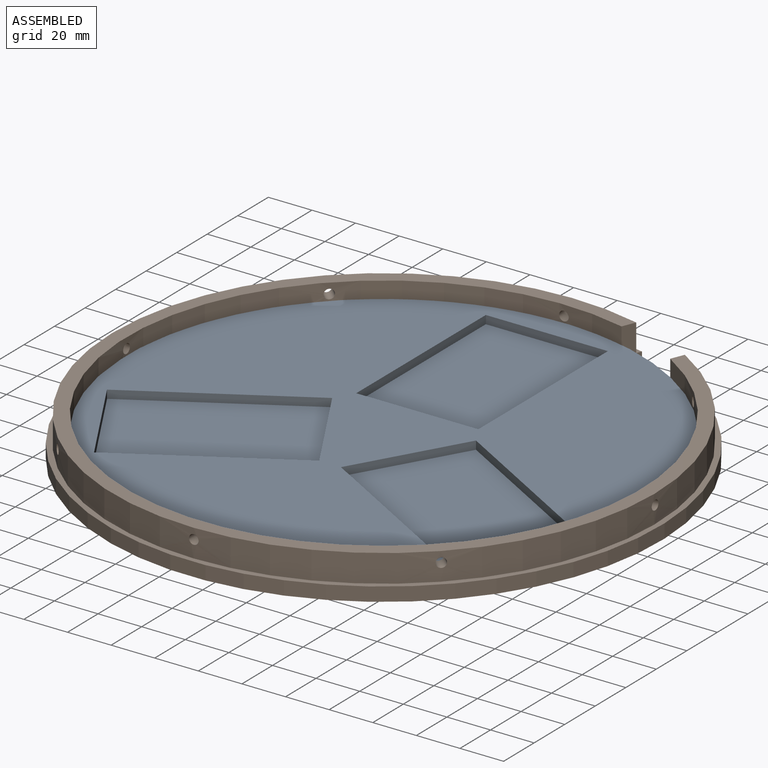
[diagram: assembled view]
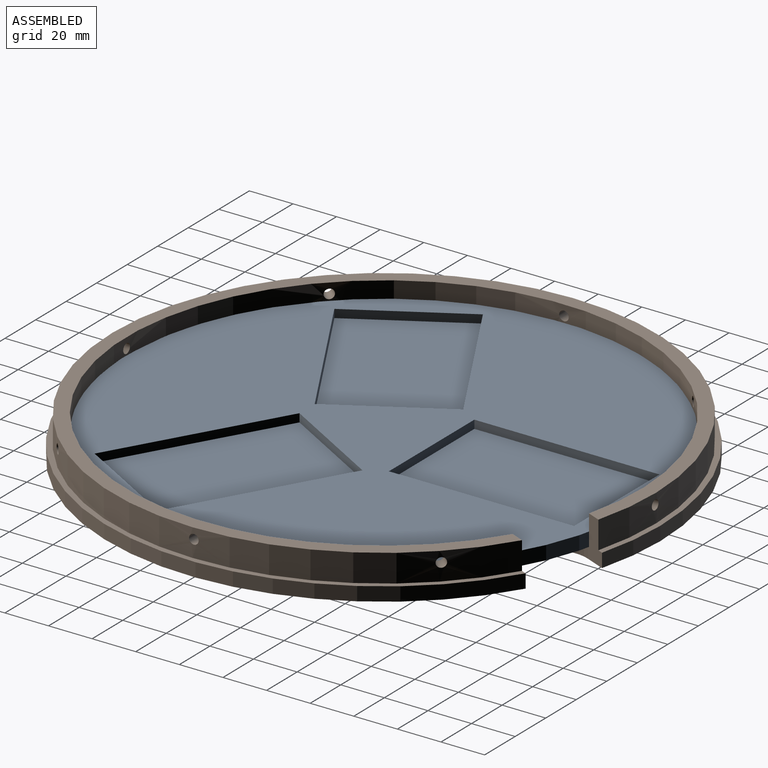
[diagram: assembled view, second angle]
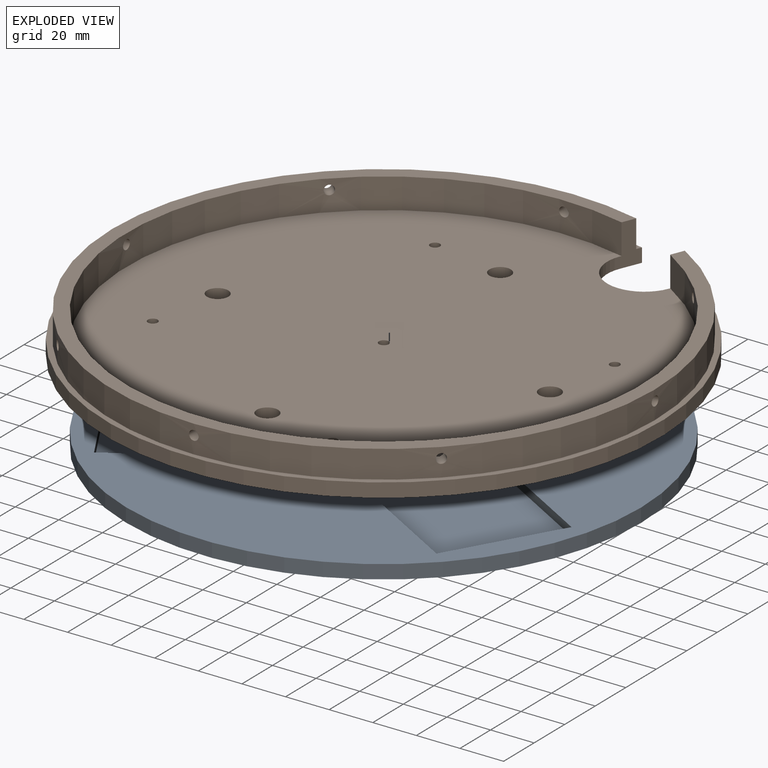
[diagram: exploded view]
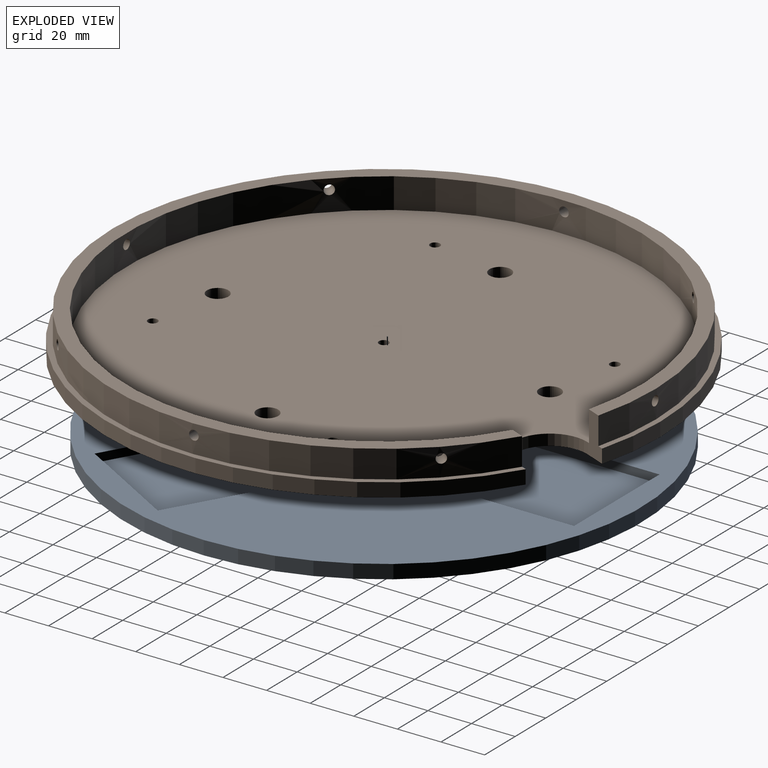
[diagram: exploded view, second angle]
ASSEMBLY  parts=2 mates=2
PART A: 18 faces, bbox 236x236x6.4 mm
  f0: plane 235.97x235.97mm, normal (0,0,1), area 29463.9mm2, adj f1,f3,f4,f5,f6,f8,f9,f10
  f1: cylinder r=117.98mm len=235.97mm, axis (0,0,-1), area 4707.3mm2, adj f0,f2
  f2: plane 235.97x235.97mm, normal (0,0,-1), area 43730.9mm2, adj f1
  f3: plane 56.01x3.81mm, normal (0,1,0), area 213.4mm2, adj f0,f4,f6,f7
  f4: plane 84.91x3.81mm, normal (-1,0,0), area 323.5mm2, adj f0,f3,f5,f7
  f5: plane 56.01x3.81mm, normal (0,-1,0), area 213.4mm2, adj f0,f4,f6,f7
  f6: plane 84.91x3.81mm, normal (1,0,0), area 323.5mm2, adj f0,f3,f5,f7
  f7: plane 84.91x56.01mm, normal (0,0,1), area 4755.7mm2, adj f3,f4,f5,f6
  f8: plane 48.5x28mm, normal (-0.87,-0.5,0), area 213.4mm2, adj f0,f9,f11,f12
  f9: plane 73.54x42.46mm, normal (0.5,-0.87,0), area 323.5mm2, adj f0,f8,f10,f12
  f10: plane 48.5x28mm, normal (0.87,0.5,0), area 213.4mm2, adj f0,f9,f11,f12
  f11: plane 73.54x42.46mm, normal (-0.5,0.87,0), area 323.5mm2, adj f0,f8,f10,f12
  f12: plane 101.54x90.96mm, normal (0,0,1), area 4755.7mm2, adj f8,f9,f10,f11
  f13: plane 48.5x28mm, normal (0.87,-0.5,0), area 213.4mm2, adj f0,f14,f16,f17
  f14: plane 73.54x42.46mm, normal (0.5,0.87,0), area 323.5mm2, adj f0,f13,f15,f17
  f15: plane 48.5x28mm, normal (-0.87,0.5,0), area 213.4mm2, adj f0,f14,f16,f17
  f16: plane 73.54x42.46mm, normal (-0.5,-0.87,0), area 323.5mm2, adj f0,f13,f15,f17
  f17: plane 101.54x90.96mm, normal (0,0,1), area 4755.7mm2, adj f13,f14,f15,f16
PART B: 27 faces, bbox 254x254x19.1 mm
  f0: plane 254x254mm, normal (0,0,1), area 49475.7mm2, adj f1,f7,f8,f9,f10,f11,f12,f13
  f1: cylinder r=127mm len=254mm, axis (0,0,1), area 4850.3mm2, adj f0,f2,f7,f9
  f2: plane 254x254mm, normal (0,0,-1), area 1919.8mm2, adj f1,f3,f7,f9
  f3: cylinder r=124.46mm len=248.92mm, axis (0,0,1), area 9375.2mm2, adj f2,f4,f7,f9,f15,f16,f17,f18
  f4: plane 248.92x248.92mm, normal (0,0,-1), area 4712.1mm2, adj f3,f5,f7,f9
  f5: cylinder r=117.98mm len=235.97mm, axis (0,0,1), area 9756.3mm2, adj f4,f6,f7,f9,f15,f16,f17,f18
  f6: plane 235.97x235.97mm, normal (0,0,-1), area 42843.8mm2, adj f5,f7,f8,f9,f10,f11,f12,f13
  f7: plane 19.05x9.03mm, normal (0.92,0.38,0), area 144.3mm2, adj f0,f1,f2,f3,f4,f5,f6,f8
  f8: cylinder r=17.02mm len=32.74mm, axis (0,0,1), area 271.6mm2, adj f0,f6,f7,f9
  f9: plane 19.05x9.03mm, normal (-0.92,-0.38,0), area 144.3mm2, adj f0,f1,f2,f3,f4,f5,f6,f8
  f10: cylinder r=2.25mm len=5.08mm, axis (0,0,1), area 71.7mm2, adj f0,f6
  f11: cylinder r=2.25mm len=5.08mm, axis (0,0,1), area 71.7mm2, adj f0,f6
  f12: cylinder r=2.25mm len=5.08mm, axis (0,0,1), area 71.7mm2, adj f0,f6
  f13: cylinder r=2.25mm len=5.08mm, axis (0,0,1), area 71.7mm2, adj f0,f6
  f14: cylinder r=2.25mm len=5.08mm, axis (0,0,1), area 71.7mm2, adj f0,f6
  f15: cylinder r=2.2mm len=6.5mm, axis (0,1,0), area 89.4mm2, adj f3,f5
  f16: cylinder r=2.2mm len=7.7mm, axis (-0.71,0.71,0), area 89.4mm2, adj f3,f5
  f17: cylinder r=2.2mm len=6.5mm, axis (-1,0,0), area 89.4mm2, adj f3,f5
  f18: cylinder r=2.2mm len=7.7mm, axis (-0.71,-0.71,0), area 89.4mm2, adj f3,f5
  f19: cylinder r=2.2mm len=6.5mm, axis (0,-1,0), area 89.4mm2, adj f3,f5
  f20: cylinder r=2.2mm len=7.7mm, axis (0.71,-0.71,0), area 89.4mm2, adj f3,f5
  f21: cylinder r=2.2mm len=6.5mm, axis (1,0,0), area 89.4mm2, adj f3,f5
  f22: cylinder r=2.2mm len=7.7mm, axis (0.71,0.71,0), area 89.4mm2, adj f3,f5
  f23: cylinder r=4.9mm len=9.8mm, axis (0,0,1), area 156.5mm2, adj f0,f6
  f24: cylinder r=4.9mm len=9.8mm, axis (0,0,1), area 156.5mm2, adj f0,f6
  f25: cylinder r=4.9mm len=9.8mm, axis (0,0,1), area 156.5mm2, adj f0,f6
  f26: cylinder r=4.9mm len=9.8mm, axis (0,0,1), area 156.5mm2, adj f0,f6
PLACE A t=(-224.3,4.74,-12.68)mm
PLACE B rot(axis=(1,0,0),180deg) t=(-224.3,4.74,-17.76)mm
MATE cylindrical B.f1 <-> A.f1  axis (0,0,1) through (-224.3,4.74,-12.68)mm
MATE fastened B.f1 <-> A.f1  axis (0,0,1) through (-224.3,4.74,-12.68)mm
